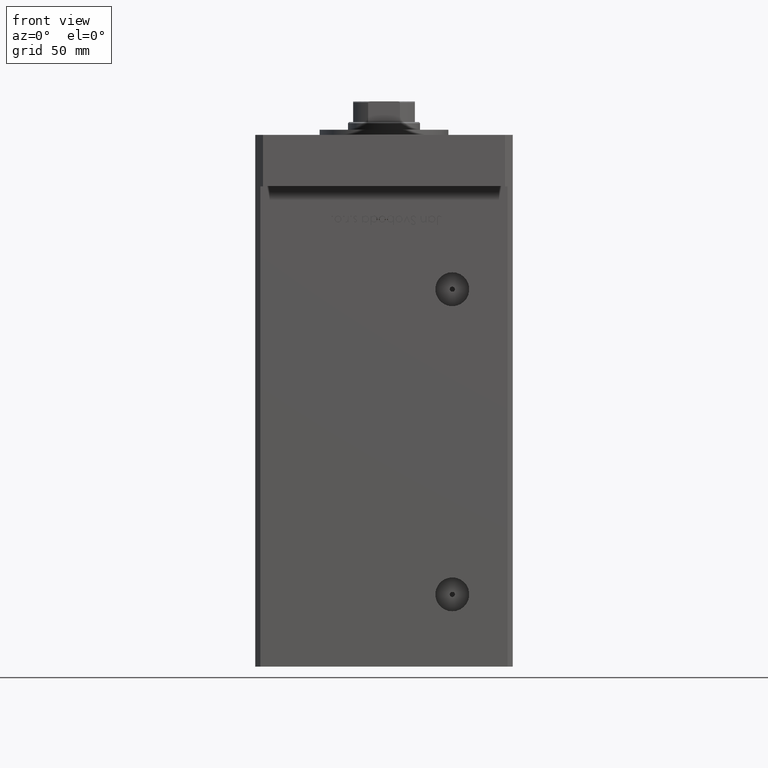
[diagram: clean part render]
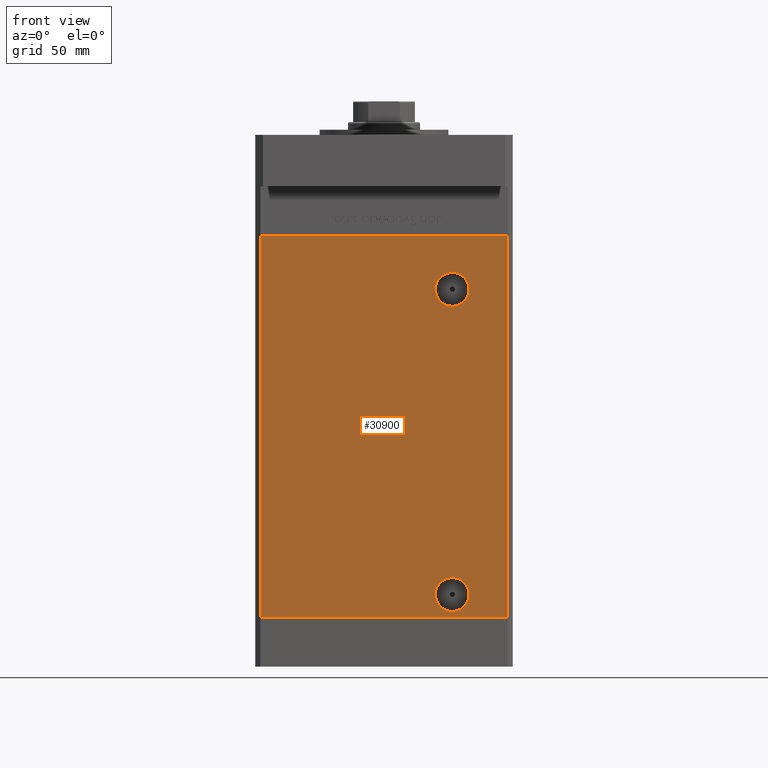
[diagram: same view with one face highlighted and labeled with its STEP entity id]
A machine part, front view. The second image highlights one B-rep face of the part: STEP entity #30900.
In plain terms, the highlighted planar face has unit normal (0, 1, 0).
Its self-contained STEP definition (entity closure, byte-faithful):
#646 = CARTESIAN_POINT ( 'NONE',  ( 26.49999999999998934, -43.50000000000000000, 15.58000000000000362 ) ) ;
#868 = EDGE_CURVE ( 'NONE', #9225, #35677, #40095, .T. ) ;
#1679 = EDGE_CURVE ( 'NONE', #50373, #27371, #28680, .T. ) ;
#5429 = EDGE_CURVE ( 'NONE', #43377, #18102, #14481, .T. ) ;
#5947 = DIRECTION ( 'NONE',  ( 0.000000000000000000, 1.000000000000000000, 0.000000000000000000 ) ) ;
#6062 = AXIS2_PLACEMENT_3D ( 'NONE', #35480, #51589, #14785 ) ;
#6120 = DIRECTION ( 'NONE',  ( 0.000000000000000000, 0.000000000000000000, -1.000000000000000000 ) ) ;
#6222 = DIRECTION ( 'NONE',  ( 0.000000000000000000, -0.000000000000000000, 1.000000000000000000 ) ) ;
#6737 = DIRECTION ( 'NONE',  ( 0.000000000000000000, 0.000000000000000000, -1.000000000000000000 ) ) ;
#7204 = LINE ( 'NONE', #23563, #47488 ) ;
#7609 = EDGE_LOOP ( 'NONE', ( #17934, #47413, #36564, #28336 ) ) ;
#9225 = VERTEX_POINT ( 'NONE', #53671 ) ;
#9505 = FACE_OUTER_BOUND ( 'NONE', #7609, .T. ) ;
#9983 = VERTEX_POINT ( 'NONE', #21221 ) ;
#11255 = AXIS2_PLACEMENT_3D ( 'NONE', #28553, #28815, #24198 ) ;
#12253 = EDGE_CURVE ( 'NONE', #27371, #50373, #13167, .T. ) ;
#13167 = CIRCLE ( 'NONE', #20184, 6.579999999999988525 ) ;
#14213 = ORIENTED_EDGE ( 'NONE', *, *, #53288, .F. ) ;
#14481 = LINE ( 'NONE', #25925, #20077 ) ;
#14785 = DIRECTION ( 'NONE',  ( 0.000000000000000000, 0.000000000000000000, -1.000000000000000000 ) ) ;
#15464 = CARTESIAN_POINT ( 'NONE',  ( 26.49999999999998934, -43.50000000000000000, 9.000000000000007105 ) ) ;
#15566 = VERTEX_POINT ( 'NONE', #646 ) ;
#17702 = ORIENTED_EDGE ( 'NONE', *, *, #1679, .T. ) ;
#17934 = ORIENTED_EDGE ( 'NONE', *, *, #868, .T. ) ;
#18102 = VERTEX_POINT ( 'NONE', #35948 ) ;
#18210 = PLANE ( 'NONE',  #28973 ) ;
#18753 = FACE_BOUND ( 'NONE', #35001, .T. ) ;
#20077 = VECTOR ( 'NONE', #47733, 1000.000000000000000 ) ;
#20184 = AXIS2_PLACEMENT_3D ( 'NONE', #26299, #43463, #6120 ) ;
#21221 = CARTESIAN_POINT ( 'NONE',  ( 26.49999999999998934, -43.50000000000000000, 2.420000000000013252 ) ) ;
#23563 = CARTESIAN_POINT ( 'NONE',  ( -47.99999999999998579, -43.50000000000000000, 148.5000000000000000 ) ) ;
#23884 = DIRECTION ( 'NONE',  ( -0.000000000000000000, -0.000000000000000000, -1.000000000000000000 ) ) ;
#24198 = DIRECTION ( 'NONE',  ( 0.000000000000000000, 0.000000000000000000, -1.000000000000000000 ) ) ;
#25852 = CARTESIAN_POINT ( 'NONE',  ( 47.99999999999998579, -43.50000000000000000, 0.000000000000000000 ) ) ;
#25925 = CARTESIAN_POINT ( 'NONE',  ( -47.99999999999998579, -43.50000000000000000, 148.5000000000000000 ) ) ;
#26067 = LINE ( 'NONE', #42693, #41382 ) ;
#26299 = CARTESIAN_POINT ( 'NONE',  ( 26.49999999999997513, -43.50000000000000000, 127.5000000000000000 ) ) ;
#26975 = CIRCLE ( 'NONE', #6062, 6.579999999999994742 ) ;
#27371 = VERTEX_POINT ( 'NONE', #29711 ) ;
#27677 = CIRCLE ( 'NONE', #44213, 6.579999999999994742 ) ;
#28336 = ORIENTED_EDGE ( 'NONE', *, *, #41684, .T. ) ;
#28553 = CARTESIAN_POINT ( 'NONE',  ( 26.49999999999997513, -43.50000000000000000, 127.5000000000000000 ) ) ;
#28680 = CIRCLE ( 'NONE', #11255, 6.579999999999988525 ) ;
#28815 = DIRECTION ( 'NONE',  ( -0.000000000000000000, 1.000000000000000000, -0.000000000000000000 ) ) ;
#28973 = AXIS2_PLACEMENT_3D ( 'NONE', #43567, #5947, #6222 ) ;
#29711 = CARTESIAN_POINT ( 'NONE',  ( 26.49999999999997513, -43.50000000000000000, 134.0800000000000125 ) ) ;
#29944 = CARTESIAN_POINT ( 'NONE',  ( -47.99999999999998579, -43.50000000000000000, 148.5000000000000000 ) ) ;
#30900 = ADVANCED_FACE ( 'NONE', ( #18753, #9505, #38647 ), #18210, .F. ) ;
#32793 = ORIENTED_EDGE ( 'NONE', *, *, #48112, .F. ) ;
#34717 = VECTOR ( 'NONE', #35449, 1000.000000000000000 ) ;
#35001 = EDGE_LOOP ( 'NONE', ( #14213, #32793 ) ) ;
#35449 = DIRECTION ( 'NONE',  ( 1.000000000000000000, 0.000000000000000000, 0.000000000000000000 ) ) ;
#35480 = CARTESIAN_POINT ( 'NONE',  ( 26.49999999999998934, -43.50000000000000000, 9.000000000000007105 ) ) ;
#35677 = VERTEX_POINT ( 'NONE', #25852 ) ;
#35948 = CARTESIAN_POINT ( 'NONE',  ( 47.99999999999998579, -43.50000000000000000, 148.5000000000000000 ) ) ;
#36564 = ORIENTED_EDGE ( 'NONE', *, *, #5429, .F. ) ;
#38647 = FACE_BOUND ( 'NONE', #41466, .T. ) ;
#40095 = LINE ( 'NONE', #43371, #34717 ) ;
#40461 = EDGE_CURVE ( 'NONE', #18102, #35677, #26067, .T. ) ;
#41382 = VECTOR ( 'NONE', #23884, 1000.000000000000000 ) ;
#41466 = EDGE_LOOP ( 'NONE', ( #17702, #50678 ) ) ;
#41684 = EDGE_CURVE ( 'NONE', #43377, #9225, #7204, .T. ) ;
#41843 = CARTESIAN_POINT ( 'NONE',  ( 26.49999999999997513, -43.50000000000000000, 120.9200000000000159 ) ) ;
#42693 = CARTESIAN_POINT ( 'NONE',  ( 47.99999999999998579, -43.50000000000000000, 148.5000000000000000 ) ) ;
#43371 = CARTESIAN_POINT ( 'NONE',  ( -47.99999999999998579, -43.50000000000000000, 0.000000000000000000 ) ) ;
#43377 = VERTEX_POINT ( 'NONE', #29944 ) ;
#43463 = DIRECTION ( 'NONE',  ( -0.000000000000000000, 1.000000000000000000, -0.000000000000000000 ) ) ;
#43567 = CARTESIAN_POINT ( 'NONE',  ( -47.99999999999998579, -43.50000000000000000, 148.5000000000000000 ) ) ;
#43726 = DIRECTION ( 'NONE',  ( -0.000000000000000000, -0.000000000000000000, -1.000000000000000000 ) ) ;
#44213 = AXIS2_PLACEMENT_3D ( 'NONE', #15464, #52264, #6737 ) ;
#47413 = ORIENTED_EDGE ( 'NONE', *, *, #40461, .F. ) ;
#47488 = VECTOR ( 'NONE', #43726, 1000.000000000000000 ) ;
#47733 = DIRECTION ( 'NONE',  ( 1.000000000000000000, 0.000000000000000000, 0.000000000000000000 ) ) ;
#48112 = EDGE_CURVE ( 'NONE', #15566, #9983, #27677, .T. ) ;
#50373 = VERTEX_POINT ( 'NONE', #41843 ) ;
#50678 = ORIENTED_EDGE ( 'NONE', *, *, #12253, .T. ) ;
#51589 = DIRECTION ( 'NONE',  ( 0.000000000000000000, -1.000000000000000000, 0.000000000000000000 ) ) ;
#52264 = DIRECTION ( 'NONE',  ( 0.000000000000000000, -1.000000000000000000, 0.000000000000000000 ) ) ;
#53288 = EDGE_CURVE ( 'NONE', #9983, #15566, #26975, .T. ) ;
#53671 = CARTESIAN_POINT ( 'NONE',  ( -47.99999999999998579, -43.50000000000000000, 0.000000000000000000 ) ) ;